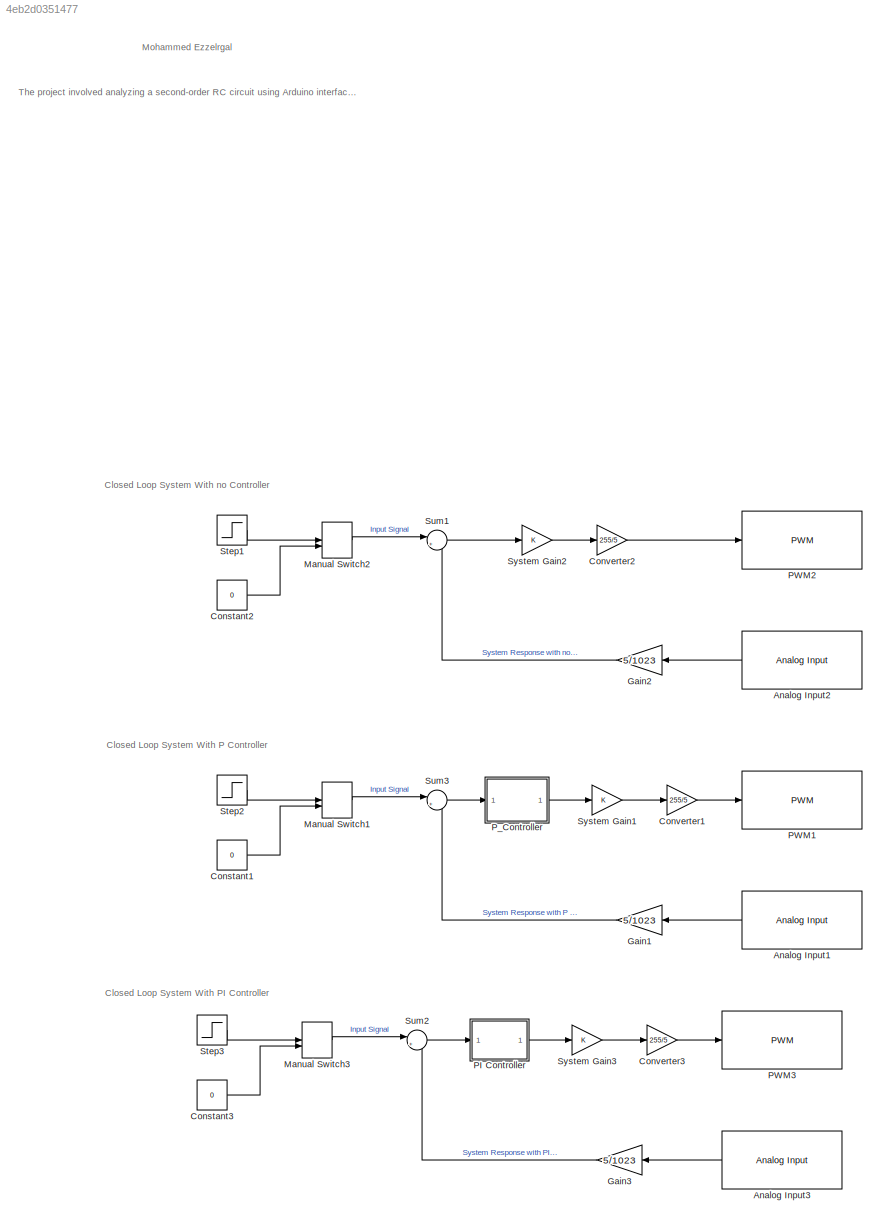
MODEL slx_4eb2d0351477
KIND model
CONFIG AbsTol = auto
CONFIG EnableMultiTasking = on
CONFIG FixedStep = 0.001
CONFIG MaxStep = auto
CONFIG MinStep = auto
CONFIG RelTol = 1e-3
CONFIG SampleTimeConstraint = Unconstrained
CONFIG SolverName = FixedStepDiscrete
CONFIG StartTime = 0.0
CONFIG StopTime = 100
BLOCK [Reference] Analog Input1  REF=arduinolib/Analog Input
  NameLocation = top
  SourceBlock = arduinolib/Analog Input
  SourceType = Arduino Analog Input
BLOCK [Reference] Analog Input2  REF=arduinolib/Analog Input
  NameLocation = top
  SourceBlock = arduinolib/Analog Input
  SourceType = Arduino Analog Input
BLOCK [Reference] Analog Input3  REF=arduinolib/Analog Input
  NameLocation = top
  SourceBlock = arduinolib/Analog Input
  SourceType = Arduino Analog Input
BLOCK [Constant] Constant1
  Value = 0
BLOCK [Constant] Constant2
  Value = 0
BLOCK [Constant] Constant3
  Value = 0
BLOCK [Gain] Converter1
  Gain = 255/5
BLOCK [Gain] Converter2
  Gain = 255/5
BLOCK [Gain] Converter3
  Gain = 255/5
BLOCK [Gain] Gain1
  Gain = 5/1023
  NameLocation = top
BLOCK [Gain] Gain2
  Gain = 5/1023
  NameLocation = top
BLOCK [Gain] Gain3
  Gain = 5/1023
  NameLocation = top
BLOCK [ManualSwitch] Manual Switch1
BLOCK [ManualSwitch] Manual Switch2
BLOCK [ManualSwitch] Manual Switch3
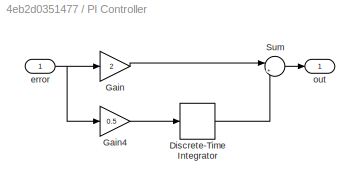
BLOCK [SubSystem] PI Controller
BLOCK [DiscreteIntegrator] PI Controller/Discrete-Time Integrator
  ICPrevOutput = DiscIntNeverNeededParam
  ICPrevScaledInput = DiscIntNeverNeededParam
  InitialConditionSetting = Auto
  SampleTime = -1
BLOCK [Gain] PI Controller/Gain
  Gain = 2
BLOCK [Gain] PI Controller/Gain4
  Gain = 0.5
BLOCK [Sum] PI Controller/Sum
  Inputs = |++
BLOCK [Inport] PI Controller/error
BLOCK [Outport] PI Controller/out
BLOCK [Reference] PWM1  REF=arduinolib/PWM
  SourceBlock = arduinolib/PWM
  SourceType = Arduino PWM
BLOCK [Reference] PWM2  REF=arduinolib/PWM
  SourceBlock = arduinolib/PWM
  SourceType = Arduino PWM
BLOCK [Reference] PWM3  REF=arduinolib/PWM
  SourceBlock = arduinolib/PWM
  SourceType = Arduino PWM
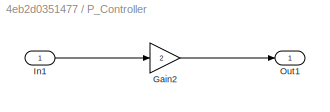
BLOCK [SubSystem] P_Controller
BLOCK [Gain] P_Controller/Gain2
  Gain = 2
BLOCK [Inport] P_Controller/In1
BLOCK [Outport] P_Controller/Out1
BLOCK [Step] Step1
  SampleTime = 0
BLOCK [Step] Step2
  SampleTime = 0
BLOCK [Step] Step3
  SampleTime = 0
BLOCK [Sum] Sum1
  Inputs = |+-
BLOCK [Sum] Sum2
  Inputs = |+-
BLOCK [Sum] Sum3
  Inputs = |+-
BLOCK [Gain] System Gain1
BLOCK [Gain] System Gain2
BLOCK [Gain] System Gain3
ANNOTATION (root): The project involved analyzing a second-order RC circuit using Arduino interfaced with Simulink in a closed-loop system. The circuit was tested both without control and with control using P and PI controllers. The main steps included connecting the RC circuit and Arduino, implementing the control interface with Simulink to create a closed-loop system, and testing the circuit without control and wi...<+432ch>
ANNOTATION (root): Mohammed Ezzelrgal
ANNOTATION (root): Closed Loop System With P Controller
ANNOTATION (root): Closed Loop System With PI Controller
ANNOTATION (root): Closed Loop System With no Controller
LINE Analog Input1:1 -> Gain1:1
LINE Analog Input2:1 -> Gain2:1
LINE Analog Input3:1 -> Gain3:1
LINE Constant1:1 -> Manual Switch1:2
LINE Constant2:1 -> Manual Switch2:2
LINE Constant3:1 -> Manual Switch3:2
LINE Converter1:1 -> PWM1:1
LINE Converter2:1 -> PWM2:1
LINE Converter3:1 -> PWM3:1
LINE Gain1:1 -> Sum3:2
LINE Gain2:1 -> Sum1:2
LINE Gain3:1 -> Sum2:2
LINE Manual Switch1:1 -> Sum3:1
LINE Manual Switch2:1 -> Sum1:1
LINE Manual Switch3:1 -> Sum2:1
LINE PI Controller/Discrete-Time Integrator:1 -> PI Controller/Sum:2
LINE PI Controller/Gain4:1 -> PI Controller/Discrete-Time Integrator:1
LINE PI Controller/Gain:1 -> PI Controller/Sum:1
LINE PI Controller/Sum:1 -> PI Controller/out:1
NET PI Controller/error:1 -> PI Controller/Gain4:1, PI Controller/Gain:1
LINE PI Controller:1 -> System Gain3:1
LINE P_Controller/Gain2:1 -> P_Controller/Out1:1
LINE P_Controller/In1:1 -> P_Controller/Gain2:1
LINE P_Controller:1 -> System Gain1:1
LINE Step1:1 -> Manual Switch2:1
LINE Step2:1 -> Manual Switch1:1
LINE Step3:1 -> Manual Switch3:1
LINE Sum1:1 -> System Gain2:1
LINE Sum2:1 -> PI Controller:1
LINE Sum3:1 -> P_Controller:1
LINE System Gain1:1 -> Converter1:1
LINE System Gain2:1 -> Converter2:1
LINE System Gain3:1 -> Converter3:1
note: NET lines group one-source signal fan-out (src -> all destinations, sorted); 1:1 wires keep LINE
